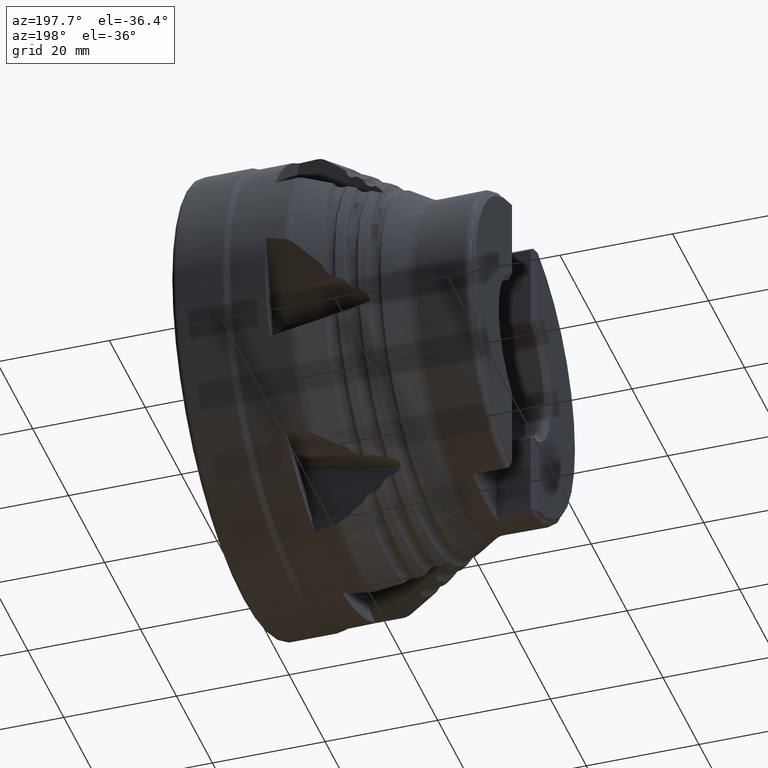
[diagram: clean part render]
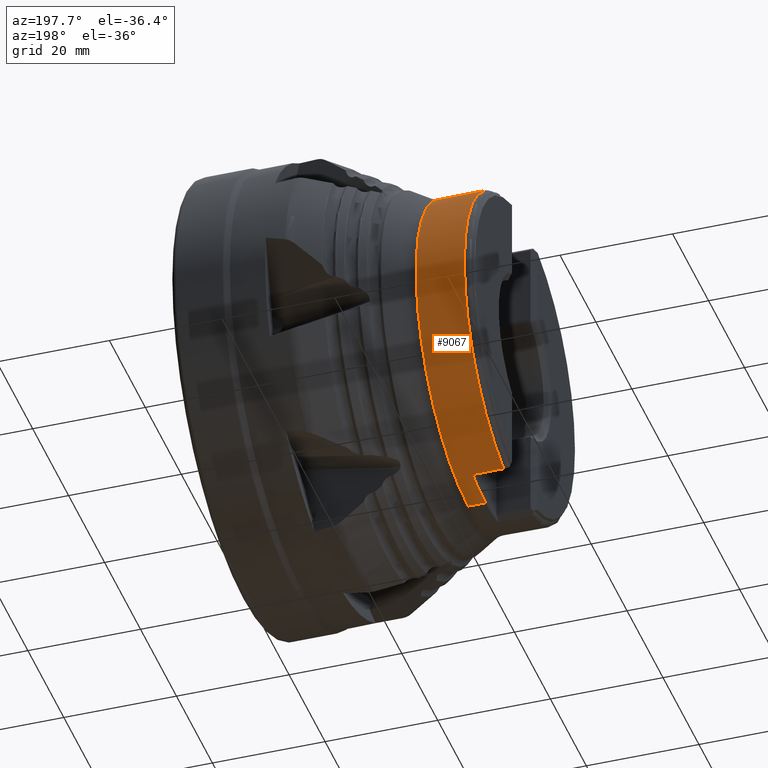
[diagram: same view with one face highlighted and labeled with its STEP entity id]
A machine part, auxiliary view. The second image highlights one B-rep face of the part: STEP entity #9067.
In plain terms, the highlighted cylindrical surface (partial cylindrical patch) has radius 29 mm, axis along (1, -0, -0).
Its self-contained STEP definition (entity closure, byte-faithful):
#1080 = DIRECTION ( 'NONE',  ( 1.000000000000000000, -0.0000000000000000000, -0.0000000000000000000 ) ) ;
#1083 = DIRECTION ( 'NONE',  ( 0.0000000000000000000, 0.0000000000000000000, -1.000000000000000000 ) ) ;
#1086 = DIRECTION ( 'NONE',  ( 1.000000000000000000, -0.0000000000000000000, -0.0000000000000000000 ) ) ;
#1090 = DIRECTION ( 'NONE',  ( 0.0000000000000000000, 0.0000000000000000000, -1.000000000000000000 ) ) ;
#1095 = DIRECTION ( 'NONE',  ( 1.000000000000000000, -0.0000000000000000000, -0.0000000000000000000 ) ) ;
#1134 = CARTESIAN_POINT ( 'NONE',  ( 1.282001162340792600E-015, 7.163868266387807700, -28.10122757926851400 ) ) ;
#1140 = CARTESIAN_POINT ( 'NONE',  ( 1.282001162340792600E-015, 7.163868266387807700, 28.10122757926851400 ) ) ;
#1142 = CARTESIAN_POINT ( 'NONE',  ( 0.0000000000000000000, 0.0000000000000000000, -28.99999999999999300 ) ) ;
#1177 = CARTESIAN_POINT ( 'NONE',  ( 0.0000000000000000000, 3.551475717527323200E-015, 28.99999999999999300 ) ) ;
#1179 = CARTESIAN_POINT ( 'NONE',  ( -41.25000000000008500, 0.0000000000000000000, 0.0000000000000000000 ) ) ;
#1180 = DIRECTION ( 'NONE',  ( 0.0000000000000000000, 0.0000000000000000000, 1.000000000000000000 ) ) ;
#1182 = DIRECTION ( 'NONE',  ( 0.0000000000000000000, 0.0000000000000000000, -1.000000000000000000 ) ) ;
#1183 = CARTESIAN_POINT ( 'NONE',  ( -38.18412581000001200, 0.0000000000000000000, 0.0000000000000000000 ) ) ;
#1190 = DIRECTION ( 'NONE',  ( -1.000000000000000000, 0.0000000000000000000, 0.0000000000000000000 ) ) ;
#1203 = CARTESIAN_POINT ( 'NONE',  ( -41.25000000000008500, 0.0000000000000000000, 0.0000000000000000000 ) ) ;
#1208 = DIRECTION ( 'NONE',  ( 1.000000000000000000, -0.0000000000000000000, -0.0000000000000000000 ) ) ;
#1215 = DIRECTION ( 'NONE',  ( -1.000000000000000000, 0.0000000000000000000, -0.0000000000000000000 ) ) ;
#1216 = DIRECTION ( 'NONE',  ( 1.000000000000000000, -0.0000000000000000000, -0.0000000000000000000 ) ) ;
#1226 = DIRECTION ( 'NONE',  ( 1.000000000000000000, -0.0000000000000000000, -0.0000000000000000000 ) ) ;
#1227 = CARTESIAN_POINT ( 'NONE',  ( -46.75000000000000000, 0.0000000000000000000, 0.0000000000000000000 ) ) ;
#2138 = ORIENTED_EDGE ( 'NONE', *, *, #7524, .F. ) ;
#2152 = ORIENTED_EDGE ( 'NONE', *, *, #7522, .T. ) ;
#2153 = ORIENTED_EDGE ( 'NONE', *, *, #7517, .T. ) ;
#2182 = ORIENTED_EDGE ( 'NONE', *, *, #7526, .F. ) ;
#2207 = ORIENTED_EDGE ( 'NONE', *, *, #7525, .T. ) ;
#2214 = ORIENTED_EDGE ( 'NONE', *, *, #7516, .F. ) ;
#2220 = ORIENTED_EDGE ( 'NONE', *, *, #7521, .F. ) ;
#2323 = VERTEX_POINT ( 'NONE', #2500 ) ;
#2367 = CARTESIAN_POINT ( 'NONE',  ( -41.25000000000008500, 0.0000000000000000000, -28.99999999999999300 ) ) ;
#2406 = VERTEX_POINT ( 'NONE', #2367 ) ;
#2500 = CARTESIAN_POINT ( 'NONE',  ( -46.75000000000000000, 7.163868266387791700, -28.10122757926851400 ) ) ;
#3161 = DIRECTION ( 'NONE',  ( 0.0000000000000000000, 0.0000000000000000000, -1.000000000000000000 ) ) ;
#3162 = DIRECTION ( 'NONE',  ( 1.000000000000000000, -0.0000000000000000000, -0.0000000000000000000 ) ) ;
#3163 = CARTESIAN_POINT ( 'NONE',  ( 0.0000000000000000000, 0.0000000000000000000, 0.0000000000000000000 ) ) ;
#4609 = EDGE_LOOP ( 'NONE', ( #7395, #2152, #2214, #2138, #2153, #2220, #2207, #2182 ) ) ;
#4977 = VECTOR ( 'NONE', #1086, 1000.000000000000000 ) ;
#4981 = LINE ( 'NONE', #1140, #4991 ) ;
#4983 = CIRCLE ( 'NONE', #8002, 28.99999999999999300 ) ;
#4985 = CIRCLE ( 'NONE', #7996, 28.99999999999999300 ) ;
#4986 = LINE ( 'NONE', #1177, #4990 ) ;
#4987 = LINE ( 'NONE', #1134, #4988 ) ;
#4988 = VECTOR ( 'NONE', #1080, 1000.000000000000000 ) ;
#4990 = VECTOR ( 'NONE', #1095, 1000.000000000000000 ) ;
#4991 = VECTOR ( 'NONE', #1190, 1000.000000000000000 ) ;
#4992 = LINE ( 'NONE', #1142, #4977 ) ;
#4993 = CIRCLE ( 'NONE', #8006, 28.99999999999999300 ) ;
#4996 = CIRCLE ( 'NONE', #8005, 28.99999999999999300 ) ;
#5363 = CYLINDRICAL_SURFACE ( 'NONE', #5655, 28.99999999999999300 ) ;
#5366 = FACE_OUTER_BOUND ( 'NONE', #4609, .T. ) ;
#5655 = AXIS2_PLACEMENT_3D ( 'NONE', #3163, #3162, #3161 ) ;
#6520 = CARTESIAN_POINT ( 'NONE',  ( -46.75000000000000000, 7.163868266387799700, 28.10122757926851000 ) ) ;
#6530 = CARTESIAN_POINT ( 'NONE',  ( -38.18412581000001200, 0.0000000000000000000, -28.99999999999999300 ) ) ;
#6551 = CARTESIAN_POINT ( 'NONE',  ( -41.25000000000008500, 3.551475717527323200E-015, 28.99999999999999300 ) ) ;
#6707 = CARTESIAN_POINT ( 'NONE',  ( -41.25000000000008500, 7.163868266387804200, 28.10122757926851400 ) ) ;
#6770 = CARTESIAN_POINT ( 'NONE',  ( -41.25000000000008500, 7.163868266387804200, -28.10122757926851400 ) ) ;
#6818 = CARTESIAN_POINT ( 'NONE',  ( -38.18412581000001200, 3.583947916847792100E-015, 28.99999999999999300 ) ) ;
#7053 = VERTEX_POINT ( 'NONE', #6520 ) ;
#7204 = VERTEX_POINT ( 'NONE', #6770 ) ;
#7210 = VERTEX_POINT ( 'NONE', #6530 ) ;
#7273 = VERTEX_POINT ( 'NONE', #6551 ) ;
#7327 = VERTEX_POINT ( 'NONE', #6818 ) ;
#7357 = VERTEX_POINT ( 'NONE', #6707 ) ;
#7395 = ORIENTED_EDGE ( 'NONE', *, *, #7523, .F. ) ;
#7516 = EDGE_CURVE ( 'NONE', #7210, #7327, #4983, .T. ) ;
#7517 = EDGE_CURVE ( 'NONE', #2406, #7204, #4985, .T. ) ;
#7521 = EDGE_CURVE ( 'NONE', #2323, #7204, #4987, .T. ) ;
#7522 = EDGE_CURVE ( 'NONE', #7273, #7327, #4986, .T. ) ;
#7523 = EDGE_CURVE ( 'NONE', #7273, #7357, #4993, .T. ) ;
#7524 = EDGE_CURVE ( 'NONE', #2406, #7210, #4992, .T. ) ;
#7525 = EDGE_CURVE ( 'NONE', #2323, #7053, #4996, .T. ) ;
#7526 = EDGE_CURVE ( 'NONE', #7357, #7053, #4981, .T. ) ;
#7996 = AXIS2_PLACEMENT_3D ( 'NONE', #1179, #1216, #1180 ) ;
#8002 = AXIS2_PLACEMENT_3D ( 'NONE', #1183, #1226, #1182 ) ;
#8005 = AXIS2_PLACEMENT_3D ( 'NONE', #1227, #1208, #1083 ) ;
#8006 = AXIS2_PLACEMENT_3D ( 'NONE', #1203, #1215, #1090 ) ;
#9067 = ADVANCED_FACE ( 'NONE', ( #5366 ), #5363, .T. ) ;